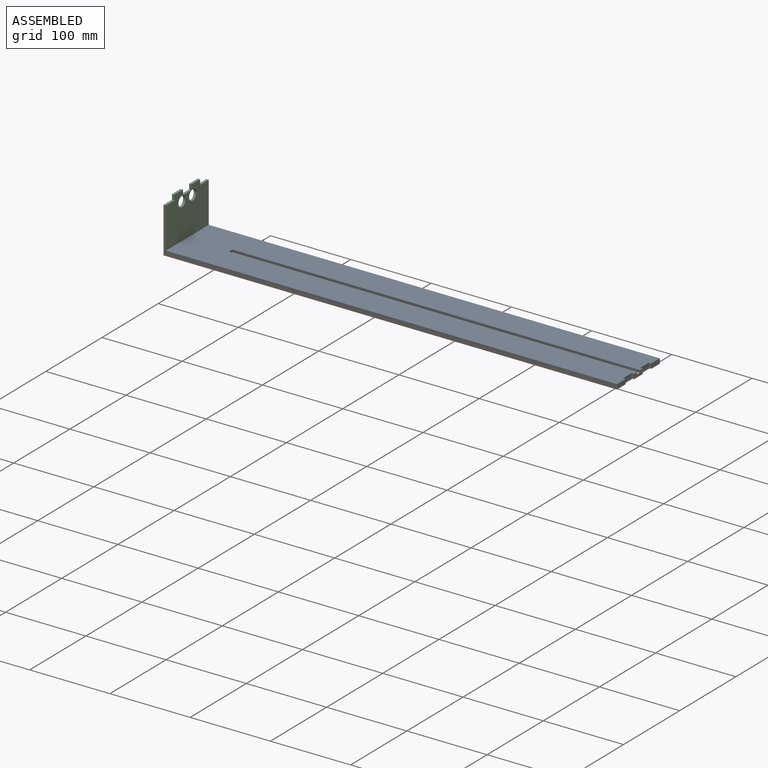
[diagram: assembled view]
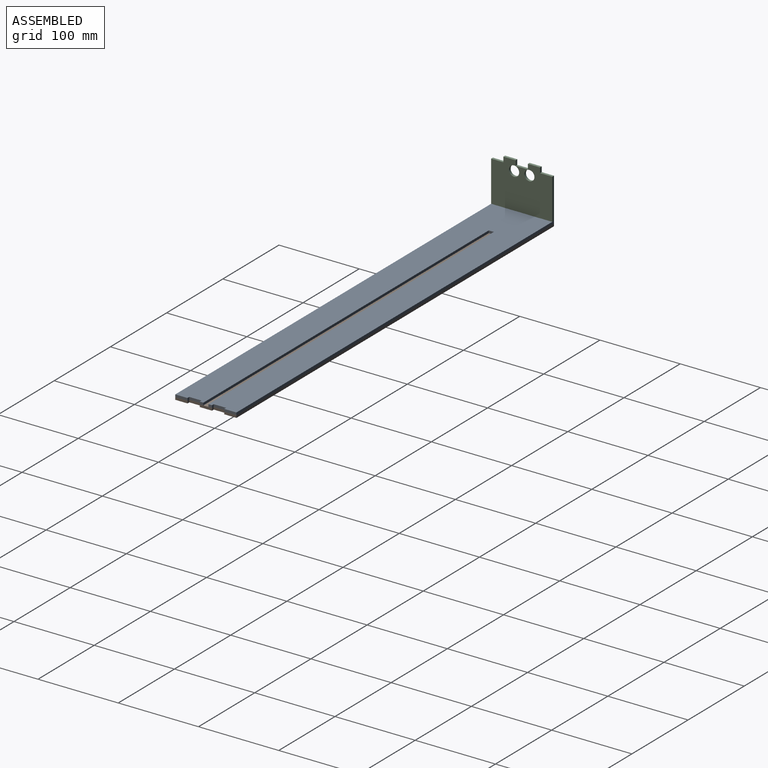
[diagram: assembled view, second angle]
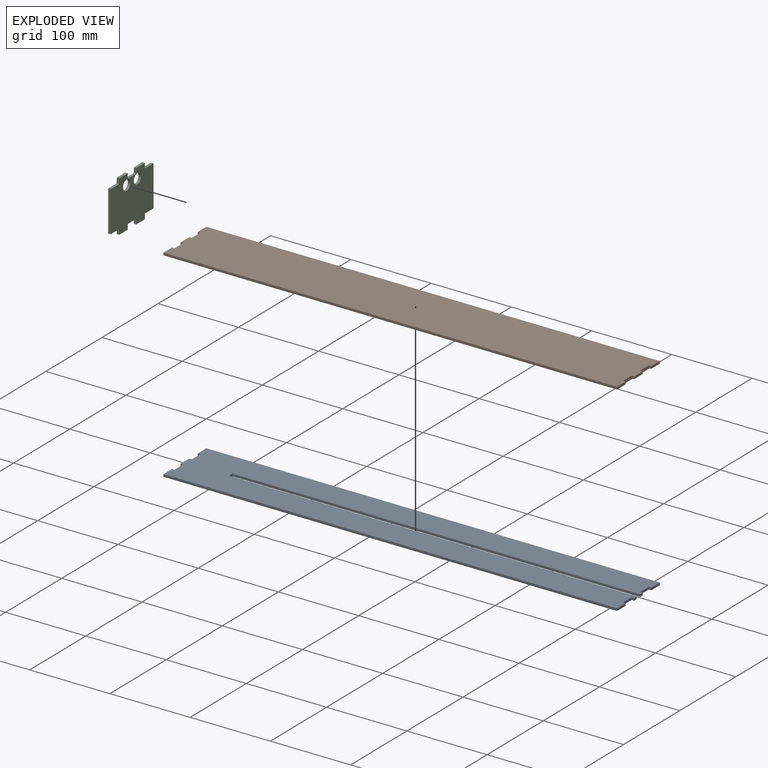
[diagram: exploded view]
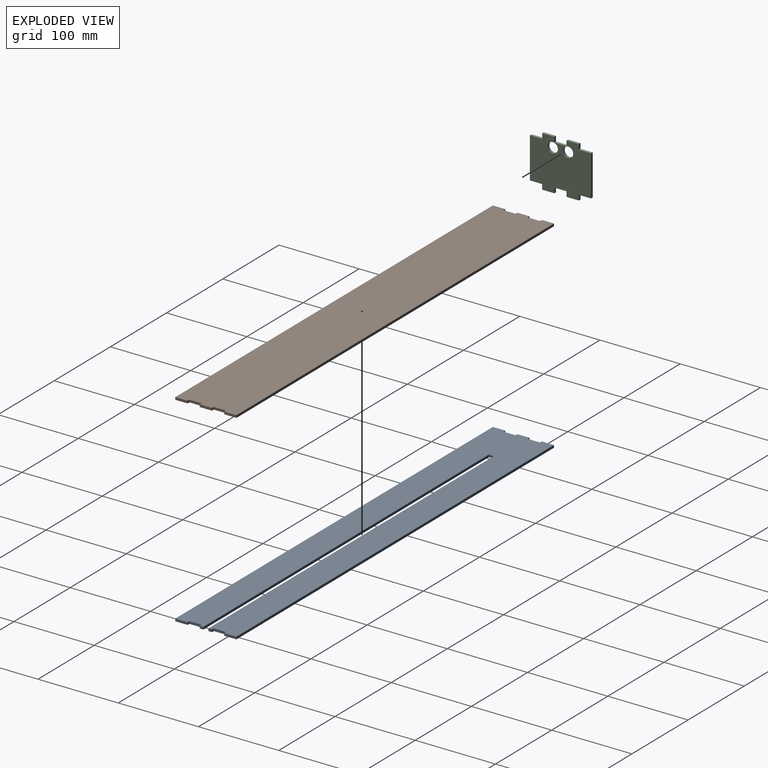
[diagram: exploded view, second angle]
ASSEMBLY  parts=3 mates=2
PART A: 26 faces, bbox 565.2x76.2x3 mm
  f0: plane 4.45x3.05mm, normal (1,0,0), area 13.5mm2, adj f7,f21,f22,f25
  f1: plane 565.15x3.05mm, normal (0,-1,0), area 1722.6mm2, adj f2,f20,f21,f22
  f2: plane 15.24x3.05mm, normal (1,0,0), area 46.5mm2, adj f1,f3,f21,f22
  f3: plane 3.18x3.05mm, normal (0,1,0), area 9.7mm2, adj f2,f4,f21,f22
  f4: plane 15.24x3.05mm, normal (1,0,0), area 46.5mm2, adj f3,f5,f21,f22
  f5: plane 3.18x3.05mm, normal (0,-1,0), area 9.7mm2, adj f4,f6,f21,f22
  f6: plane 4.45x3.05mm, normal (1,0,0), area 13.5mm2, adj f5,f21,f22,f24
  f7: plane 3.18x3.05mm, normal (0,1,0), area 9.7mm2, adj f0,f8,f21,f22
  f8: plane 15.24x3.05mm, normal (1,0,0), area 46.5mm2, adj f7,f9,f21,f22
  f9: plane 3.18x3.05mm, normal (0,-1,0), area 9.7mm2, adj f8,f10,f21,f22
  f10: plane 15.24x3.05mm, normal (1,0,0), area 46.5mm2, adj f9,f11,f21,f22
  f11: plane 565.15x3.05mm, normal (0,1,0), area 1722.6mm2, adj f10,f12,f21,f22
  f12: plane 15.24x3.05mm, normal (-1,0,0), area 46.5mm2, adj f11,f13,f21,f22
  f13: plane 3.18x3.05mm, normal (0,-1,0), area 9.7mm2, adj f12,f14,f21,f22
  f14: plane 15.24x3.05mm, normal (-1,0,0), area 46.5mm2, adj f13,f15,f21,f22
  f15: plane 3.18x3.05mm, normal (0,1,0), area 9.7mm2, adj f14,f16,f21,f22
  f16: plane 15.24x3.05mm, normal (-1,0,0), area 46.5mm2, adj f15,f17,f21,f22
  f17: plane 3.18x3.05mm, normal (0,-1,0), area 9.7mm2, adj f16,f18,f21,f22
  f18: plane 15.24x3.05mm, normal (-1,0,0), area 46.5mm2, adj f17,f19,f21,f22
  f19: plane 3.18x3.05mm, normal (0,1,0), area 9.7mm2, adj f18,f20,f21,f22
  f20: plane 15.24x3.05mm, normal (-1,0,0), area 46.5mm2, adj f1,f19,f21,f22
  f21: plane 565.15x76.2mm, normal (0,0,1), area 39645.1mm2, adj f0,f1,f2,f3,f4,f5,f6,f7
  f22: plane 565.15x76.2mm, normal (0,0,-1), area 39645.1mm2, adj f0,f1,f2,f3,f4,f5,f6,f7
  f23: plane 6.35x3.05mm, normal (1,0,0), area 19.4mm2, adj f21,f22,f24,f25
  f24: plane 508x3.05mm, normal (0,1,0), area 1548.4mm2, adj f6,f21,f22,f23
  f25: plane 508x3.05mm, normal (0,-1,0), area 1548.4mm2, adj f0,f21,f22,f23
PART B: 22 faces, bbox 565.2x76.2x3 mm
  f0: plane 565.15x3.05mm, normal (0,-1,0), area 1722.6mm2, adj f1,f19,f20,f21
  f1: plane 15.24x3.05mm, normal (1,0,0), area 46.5mm2, adj f0,f2,f20,f21
  f2: plane 3.18x3.05mm, normal (0,1,0), area 9.7mm2, adj f1,f3,f20,f21
  f3: plane 15.24x3.05mm, normal (1,0,0), area 46.5mm2, adj f2,f4,f20,f21
  f4: plane 3.18x3.05mm, normal (0,-1,0), area 9.7mm2, adj f3,f5,f20,f21
  f5: plane 15.24x3.05mm, normal (1,0,0), area 46.5mm2, adj f4,f6,f20,f21
  f6: plane 3.18x3.05mm, normal (0,1,0), area 9.7mm2, adj f5,f7,f20,f21
  f7: plane 15.24x3.05mm, normal (1,0,0), area 46.5mm2, adj f6,f8,f20,f21
  f8: plane 3.18x3.05mm, normal (0,-1,0), area 9.7mm2, adj f7,f9,f20,f21
  f9: plane 15.24x3.05mm, normal (1,0,0), area 46.5mm2, adj f8,f10,f20,f21
  f10: plane 565.15x3.05mm, normal (0,1,0), area 1722.6mm2, adj f9,f11,f20,f21
  f11: plane 15.24x3.05mm, normal (-1,0,0), area 46.5mm2, adj f10,f12,f20,f21
  f12: plane 3.18x3.05mm, normal (0,-1,0), area 9.7mm2, adj f11,f13,f20,f21
  f13: plane 15.24x3.05mm, normal (-1,0,0), area 46.5mm2, adj f12,f14,f20,f21
  f14: plane 3.18x3.05mm, normal (0,1,0), area 9.7mm2, adj f13,f15,f20,f21
  f15: plane 15.24x3.05mm, normal (-1,0,0), area 46.5mm2, adj f14,f16,f20,f21
  f16: plane 3.18x3.05mm, normal (0,-1,0), area 9.7mm2, adj f15,f17,f20,f21
  f17: plane 15.24x3.05mm, normal (-1,0,0), area 46.5mm2, adj f16,f18,f20,f21
  f18: plane 3.18x3.05mm, normal (0,1,0), area 9.7mm2, adj f17,f19,f20,f21
  f19: plane 15.24x3.05mm, normal (-1,0,0), area 46.5mm2, adj f0,f18,f20,f21
  f20: plane 565.15x76.2mm, normal (0,0,1), area 42870.9mm2, adj f0,f1,f2,f3,f4,f5,f6,f7
  f21: plane 565.15x76.2mm, normal (0,0,-1), area 42870.9mm2, adj f0,f1,f2,f3,f4,f5,f6,f7
PART C: 24 faces, bbox 76.2x63.5x3 mm
  f0: plane 76.2x63.5mm, normal (0,0,1), area 4004.7mm2, adj f2,f3,f4,f5,f6,f7,f8,f9
  f1: plane 76.2x63.5mm, normal (0,0,-1), area 4004.7mm2, adj f2,f3,f4,f5,f6,f7,f8,f9
  f2: plane 15.24x3.05mm, normal (0,1,0), area 46.5mm2, adj f0,f1,f3,f17
  f3: plane 50.8x3.05mm, normal (-1,0,0), area 154.8mm2, adj f0,f1,f2,f4
  f4: plane 15.24x3.05mm, normal (0,-1,0), area 46.5mm2, adj f0,f1,f3,f5
  f5: plane 6.35x3.05mm, normal (-1,0,0), area 19.4mm2, adj f0,f1,f4,f18
  f6: plane 6.35x3.05mm, normal (1,0,0), area 19.4mm2, adj f0,f1,f7,f18
  f7: plane 15.24x3.05mm, normal (0,-1,0), area 46.5mm2, adj f0,f1,f6,f8
  f8: plane 6.35x3.05mm, normal (-1,0,0), area 19.4mm2, adj f0,f1,f7,f19
  f9: plane 6.35x3.05mm, normal (1,0,0), area 19.4mm2, adj f0,f1,f10,f19
  f10: plane 15.24x3.05mm, normal (0,-1,0), area 46.5mm2, adj f0,f1,f9,f11
  f11: plane 50.8x3.05mm, normal (1,0,0), area 154.8mm2, adj f0,f1,f10,f12
  f12: plane 15.24x3.05mm, normal (0,1,0), area 46.5mm2, adj f0,f1,f11,f13
  f13: plane 6.35x3.05mm, normal (1,0,0), area 19.4mm2, adj f0,f1,f12,f20
  f14: plane 6.35x3.05mm, normal (-1,0,0), area 19.4mm2, adj f0,f1,f15,f20
  f15: plane 15.24x3.05mm, normal (0,1,0), area 46.5mm2, adj f0,f1,f14,f16
  f16: plane 6.35x3.05mm, normal (1,0,0), area 19.4mm2, adj f0,f1,f15,f21
  f17: plane 6.35x3.05mm, normal (-1,0,0), area 19.4mm2, adj f0,f1,f2,f21
  f18: plane 15.24x3.05mm, normal (0,-1,0), area 46.5mm2, adj f0,f1,f5,f6
  f19: plane 15.24x3.05mm, normal (0,-1,0), area 46.5mm2, adj f0,f1,f8,f9
  f20: plane 15.24x3.05mm, normal (0,1,0), area 46.5mm2, adj f0,f1,f13,f14
  f21: plane 15.24x3.05mm, normal (0,1,0), area 46.5mm2, adj f0,f1,f16,f17
  f22: cylinder r=6.35mm len=12.7mm, axis (0,0,1), area 121.6mm2, adj f0,f1
  f23: cylinder r=6.35mm len=12.7mm, axis (0,0,1), area 121.6mm2, adj f0,f1
PLACE A t=(-241.76,121.42,-74.27)mm
PLACE B t=(-241.76,121.42,-77.31)mm
PLACE C rot(axis=(-0.58,0.58,-0.58),120deg) t=(-244.93,121.42,-71.22)mm
MATE fastened B.f20 <-> A.f22  axis (0,0,1) through (-244.93,45.22,-74.27)mm
MATE fastened C.f1 <-> A.f20  axis (-1,0,0) through (-244.93,45.22,-71.22)mm
